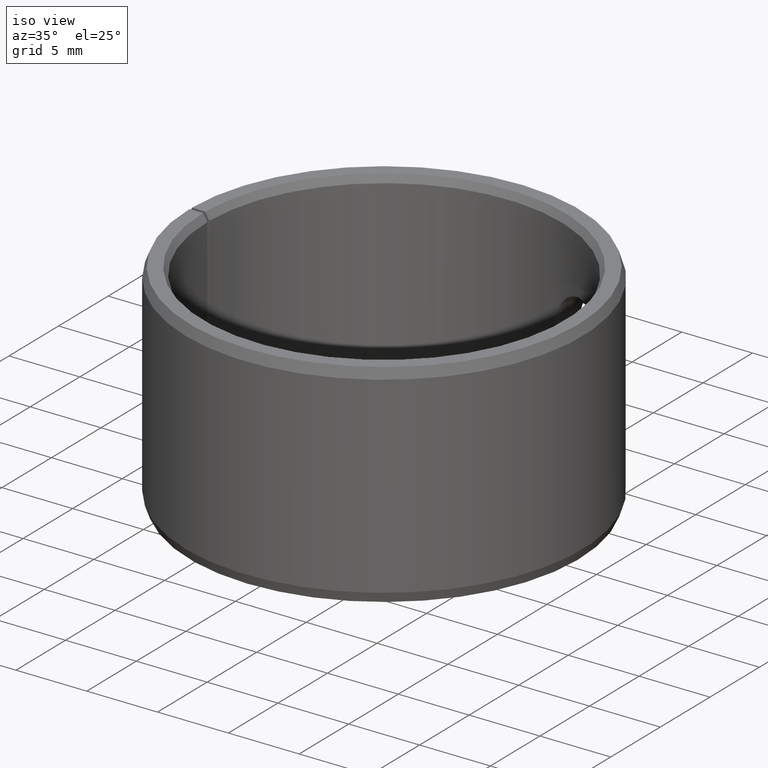
[diagram: clean part render]
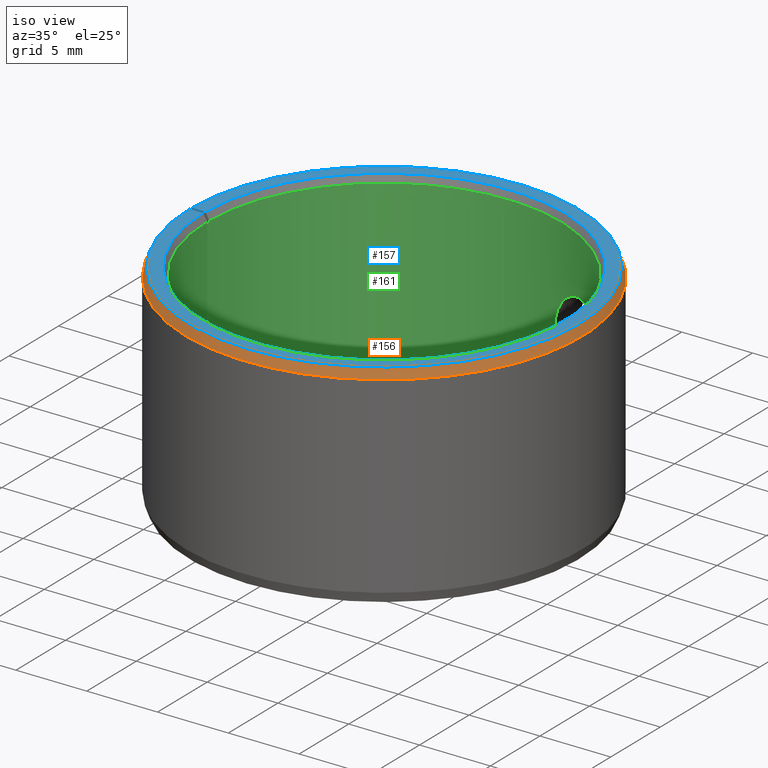
[diagram: same view with three faces highlighted in distinct colors, each labeled with its STEP entity id]
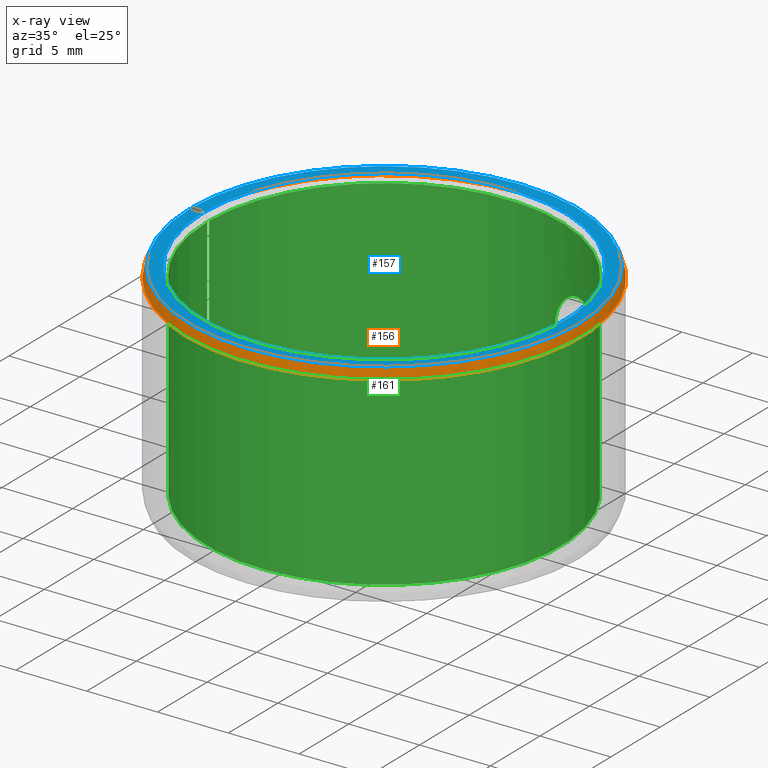
[diagram: x-ray of the same camera — body ghosted, the three highlighted faces saturated]
A machine part, iso view with three faces highlighted in distinct colors.
The next image is the same camera in x-ray (body ghosted, the three faces saturated) — at least one of them is partly hidden behind the body in this view.
Their STEP definitions:

[orange] entity #156 — the highlighted conical surface has half-angle 20 deg.
#156=ADVANCED_FACE('',(#172),#173,.T.);
#172=FACE_OUTER_BOUND('',#198,.T.);
#173=CONICAL_SURFACE('',#199,0.014,0.349065850398869);
#198=EDGE_LOOP('',(#238,#239,#240,#241));
#199=AXIS2_PLACEMENT_3D('',#242,#243,#244);
#238=ORIENTED_EDGE('',*,*,#312,.T.);
#239=ORIENTED_EDGE('',*,*,#313,.F.);
#240=ORIENTED_EDGE('',*,*,#314,.F.);
#241=ORIENTED_EDGE('',*,*,#315,.T.);
#242=CARTESIAN_POINT('',(-8.67361737988404E-018,-6.93889390390723E-018,0.0143));
#243=DIRECTION('',(6.12323399573677E-017,-0.0,-1.0));
#244=DIRECTION('',(-1.0,0.0,-6.12323399573677E-017));
#312=EDGE_CURVE('',#346,#347,#348,.T.);
#313=EDGE_CURVE('',#349,#347,#350,.T.);
#314=EDGE_CURVE('',#351,#349,#352,.T.);
#315=EDGE_CURVE('',#351,#346,#353,.T.);
#346=VERTEX_POINT('',#396);
#347=VERTEX_POINT('',#397);
#348=CIRCLE('',#398,0.0137452208360137);
#349=VERTEX_POINT('',#399);
#350=LINE('',#400,#401);
#351=VERTEX_POINT('',#402);
#352=CIRCLE('',#403,0.014);
#353=LINE('',#404,#405);
#396=CARTESIAN_POINT('',(0.00023988718060032,0.0137431273723039,0.015));
#397=CARTESIAN_POINT('',(-8.67361737988404E-018,0.0137452208360137,0.015));
#398=AXIS2_PLACEMENT_3D('',#572,#573,#574);
#399=CARTESIAN_POINT('',(-8.67361737988404E-018,0.014,0.0143));
#400=CARTESIAN_POINT('',(-8.67361737988404E-018,0.014,0.0143));
#401=VECTOR('',#575,1.0);
#402=CARTESIAN_POINT('',(0.000244333690121963,0.0139978677321895,0.0143));
#403=AXIS2_PLACEMENT_3D('',#576,#577,#578);
#404=CARTESIAN_POINT('',(0.000244333690121963,0.0139978677321895,0.0143));
#405=VECTOR('',#579,1.0);
#572=CARTESIAN_POINT('',(-8.67361737988404E-018,-6.93889390390723E-018,0.015));
#573=DIRECTION('',(6.12323399573677E-017,0.0,-1.0));
#574=DIRECTION('',(-1.0,0.0,-6.12323399573677E-017));
#575=DIRECTION('',(0.0,-0.34202014332567,0.939692620785908));
#576=CARTESIAN_POINT('',(-8.67361737988404E-018,-6.93889390390723E-018,0.0143));
#577=DIRECTION('',(6.12323399573677E-017,0.0,-1.0));
#578=DIRECTION('',(-1.0,0.0,-6.12323399573677E-017));
#579=DIRECTION('',(-0.00596907455105756,-0.341968052001229,0.939692620785908));

[blue] entity #157 — the highlighted planar face has unit normal (0, -0, 1).
#157=ADVANCED_FACE('',(#174),#175,.T.);
#174=FACE_OUTER_BOUND('',#200,.T.);
#175=PLANE('',#201);
#200=EDGE_LOOP('',(#245,#246,#247,#248));
#201=AXIS2_PLACEMENT_3D('',#249,#250,#251);
#245=ORIENTED_EDGE('',*,*,#316,.T.);
#246=ORIENTED_EDGE('',*,*,#317,.T.);
#247=ORIENTED_EDGE('',*,*,#318,.F.);
#248=ORIENTED_EDGE('',*,*,#312,.F.);
#249=CARTESIAN_POINT('',(0.00023988718060032,0.0137431273723039,0.015));
#250=DIRECTION('',(-6.12323399573677E-017,0.0,1.0));
#251=DIRECTION('',(1.0,0.0,6.12323399573677E-017));
#312=EDGE_CURVE('',#346,#347,#348,.T.);
#316=EDGE_CURVE('',#346,#354,#355,.T.);
#317=EDGE_CURVE('',#354,#356,#357,.T.);
#318=EDGE_CURVE('',#347,#356,#358,.T.);
#346=VERTEX_POINT('',#396);
#347=VERTEX_POINT('',#397);
#348=CIRCLE('',#398,0.0137452208360137);
#354=VERTEX_POINT('',#406);
#355=LINE('',#407,#408);
#356=VERTEX_POINT('',#409);
#357=CIRCLE('',#410,0.0127886751345948);
#358=LINE('',#411,#412);
#396=CARTESIAN_POINT('',(0.00023988718060032,0.0137431273723039,0.015));
#397=CARTESIAN_POINT('',(-8.67361737988404E-018,0.0137452208360137,0.015));
#398=AXIS2_PLACEMENT_3D('',#572,#573,#574);
#406=CARTESIAN_POINT('',(0.000223193156243322,0.0127867273574285,0.015));
#407=CARTESIAN_POINT('',(0.00023988718060032,0.0137431273723039,0.015));
#408=VECTOR('',#580,1.0);
#409=CARTESIAN_POINT('',(-8.67361737988404E-018,0.0127886751345948,0.015));
#410=AXIS2_PLACEMENT_3D('',#581,#582,#583);
#411=CARTESIAN_POINT('',(-8.67361737988404E-018,0.0137452208360137,0.015));
#412=VECTOR('',#584,1.0);
#572=CARTESIAN_POINT('',(-8.67361737988404E-018,-6.93889390390723E-018,0.015));
#573=DIRECTION('',(6.12323399573677E-017,0.0,-1.0));
#574=DIRECTION('',(-1.0,0.0,-6.12323399573677E-017));
#580=DIRECTION('',(-0.0174524064372836,-0.999847695156391,-1.0686516840419E-018));
#581=CARTESIAN_POINT('',(-8.67361737988404E-018,-6.93889390390723E-018,0.015));
#582=DIRECTION('',(6.12323399573677E-017,0.0,-1.0));
#583=DIRECTION('',(-1.0,0.0,-6.12323399573677E-017));
#584=DIRECTION('',(0.0,-1.0,0.0));

[green] entity #161 — the highlighted cylindrical surface (partial cylindrical patch) has radius 12.5 mm, axis along (-0, 0, -1).
#161=ADVANCED_FACE('',(#182,#183),#184,.F.);
#182=FACE_OUTER_BOUND('',#208,.T.);
#183=FACE_BOUND('',#209,.T.);
#184=CYLINDRICAL_SURFACE('',#210,0.0125);
#208=EDGE_LOOP('',(#281,#282,#283,#284));
#209=EDGE_LOOP('',(#285));
#210=AXIS2_PLACEMENT_3D('',#286,#287,#288);
#281=ORIENTED_EDGE('',*,*,#304,.T.);
#282=ORIENTED_EDGE('',*,*,#322,.F.);
#283=ORIENTED_EDGE('',*,*,#319,.F.);
#284=ORIENTED_EDGE('',*,*,#325,.T.);
#285=ORIENTED_EDGE('',*,*,#326,.T.);
#286=CARTESIAN_POINT('',(-6.93889390390723E-018,-6.93889390390723E-018,0.0));
#287=DIRECTION('',(6.12323399573677E-017,0.0,-1.0));
#288=DIRECTION('',(-1.0,0.0,-6.12323399573677E-017));
#304=EDGE_CURVE('',#333,#331,#334,.T.);
#319=EDGE_CURVE('',#359,#360,#361,.T.);
#322=EDGE_CURVE('',#360,#331,#364,.T.);
#325=EDGE_CURVE('',#359,#333,#367,.T.);
#326=EDGE_CURVE('',#368,#368,#369,.T.);
#331=VERTEX_POINT('',#375);
#333=VERTEX_POINT('',#378);
#334=CIRCLE('',#379,0.0125);
#359=VERTEX_POINT('',#413);
#360=VERTEX_POINT('',#414);
#361=CIRCLE('',#415,0.0125);
#364=LINE('',#420,#421);
#367=LINE('',#426,#427);
#368=VERTEX_POINT('',#428);
#369=B_SPLINE_CURVE_WITH_KNOTS('',3,(#429,#430,#431,#432,#433,#434,#435,#436,#437,#438,#439,#440,#441,#442,#443,#444,#445,#446,#447,#448,#449,#450,#451,#452,#453,#454,#455,#456,#457,#458,#459,#460,#461,#462,#463,#464,#465,#466,#467,#468,#469,#470,#471,#472,#473,#474,#475,#476,#477,#478,#479,#480,#481,#482,#483,#484,#485,#486,#487,#488,#489,#490,#491,#492),.UNSPECIFIED.,.T.,.F.,(2,2,2,2,2,2,2,2,2,2,2,2,2,2,2,2,2,2,2,2,2,2,2,2,2,2,2,2,2,2,2,2,2,2),(-0.000588281034898592,0.0,0.00058828103489859,0.00117656206979718,0.00176484310469577,0.00235312413959436,0.00294140517449295,0.00352968620939154,0.00411796724429013,0.00470624827918872,0.00529452931408731,0.0058828103489859,0.0064710913838845,0.00705937241878309,0.00764765345368168,0.00823593448858027,0.00882421552347886,0.00941249655837745,0.0105890586281746,0.0111773396630732,0.0117656206979718,0.0123539017328704,0.012942182767769,0.0135304638026676,0.0141187448375662,0.0147070258724648,0.0152953069073633,0.0158835879422619,0.0164718689771605,0.0170601500120591,0.0176484310469577,0.0182367120818563,0.0188249931167549,0.0194132741516535),.UNSPECIFIED.);
#375=CARTESIAN_POINT('',(-6.93889390390723E-018,0.0125,0.0005));
#378=CARTESIAN_POINT('',(0.000218155080466037,0.0124980961894549,0.0005));
#379=AXIS2_PLACEMENT_3D('',#558,#559,#560);
#413=CARTESIAN_POINT('',(0.000218155080466036,0.0124980961894549,0.0145));
#414=CARTESIAN_POINT('',(-8.67361737988404E-018,0.0125,0.0145));
#415=AXIS2_PLACEMENT_3D('',#585,#586,#587);
#420=CARTESIAN_POINT('',(-8.67361737988404E-018,0.0125,0.0145));
#421=VECTOR('',#590,1.0);
#426=CARTESIAN_POINT('',(0.000218155080466036,0.0124980961894549,0.0145));
#427=VECTOR('',#593,1.0);
#428=CARTESIAN_POINT('',(0.00885632047490393,-0.00882131439445378,0.0075));
#429=CARTESIAN_POINT('',(0.00885632047490393,-0.00882131439445378,0.00769897629236843));
#430=CARTESIAN_POINT('',(0.00885632047490393,-0.00882131439445378,0.00730102370763157));
#431=CARTESIAN_POINT('',(0.008870608015087,-0.00880703515908166,0.00710552353993709));
#432=CARTESIAN_POINT('',(0.00892599499023425,-0.00875089528476596,0.00672114284022996));
#433=CARTESIAN_POINT('',(0.00896779204067812,-0.00870831130558218,0.00653022657795962));
#434=CARTESIAN_POINT('',(0.00907484727826891,-0.00859669278012629,0.00616731017956878));
#435=CARTESIAN_POINT('',(0.0091396786892607,-0.00852810696772537,0.00599529929286672));
#436=CARTESIAN_POINT('',(0.00928976897487818,-0.00836436054873789,0.00566976204525108));
#437=CARTESIAN_POINT('',(0.00937545269464949,-0.00826864229251243,0.00551622160314748));
#438=CARTESIAN_POINT('',(0.00955810451651012,-0.00805681057507277,0.0052406385914374));
#439=CARTESIAN_POINT('',(0.00965584091228449,-0.00793990352391979,0.00511670706961737));
#440=CARTESIAN_POINT('',(0.00986245049769695,-0.00768175773329114,0.00489734614026971));
#441=CARTESIAN_POINT('',(0.00996895282431969,-0.00754339318071887,0.00480461730849215));
#442=CARTESIAN_POINT('',(0.0101833126175242,-0.00725140987851323,0.00465473453464443));
#443=CARTESIAN_POINT('',(0.0102926883023463,-0.00709564698354434,0.0045967184624443));
#444=CARTESIAN_POINT('',(0.0105079342040151,-0.00677281015298865,0.0045193536365746));
#445=CARTESIAN_POINT('',(0.0106124294144885,-0.00660794509533712,0.0045001216828471));
#446=CARTESIAN_POINT('',(0.0108148478169199,-0.00627117717476989,0.00449987945728094));
#447=CARTESIAN_POINT('',(0.0109135801933662,-0.00609762006583403,0.00451953326133243));
#448=CARTESIAN_POINT('',(0.0110965180618742,-0.00575799357474428,0.00459640292515818));
#449=CARTESIAN_POINT('',(0.0111816475900836,-0.00559054477060253,0.00465326972729905));
#450=CARTESIAN_POINT('',(0.0113403842774647,-0.00526109476253425,0.00480425405408531));
#451=CARTESIAN_POINT('',(0.0114129447817266,-0.00510112201082134,0.00489783921307462));
#452=CARTESIAN_POINT('',(0.0115425146926919,-0.00480074045632727,0.00511465432702435));
#453=CARTESIAN_POINT('',(0.0116005903623565,-0.00465791971312208,0.0052395049627046));
#454=CARTESIAN_POINT('',(0.0117027872337349,-0.00439484741157424,0.005517604453523));
#455=CARTESIAN_POINT('',(0.0117461510535234,-0.00427670620915678,0.0056682598435595));
#456=CARTESIAN_POINT('',(0.0118201284333513,-0.00406778126141385,0.0059924770510523));
#457=CARTESIAN_POINT('',(0.011850935043456,-0.00397634096719326,0.00616814542827026));
#458=CARTESIAN_POINT('',(0.0118991014398589,-0.00382979553181898,0.00653028357756143));
#459=CARTESIAN_POINT('',(0.0119167805745733,-0.00377384767185728,0.0067172788549418));
#460=CARTESIAN_POINT('',(0.0119405815194949,-0.00369785052283178,0.00710337951537278));
#461=CARTESIAN_POINT('',(0.0119465236521878,-0.00367839267004559,0.00730254112040654));
#462=CARTESIAN_POINT('',(0.0119465992239134,-0.00367814722550706,0.00789110545900317));
#463=CARTESIAN_POINT('',(0.0119232522966096,-0.00375628047129552,0.00828726127403094));
#464=CARTESIAN_POINT('',(0.0118513342251184,-0.00397514454598179,0.00882928807772022));
#465=CARTESIAN_POINT('',(0.0118206911688308,-0.00406615574208262,0.00900472891133975));
#466=CARTESIAN_POINT('',(0.011746490928873,-0.00427578216068718,0.00933057440331463));
#467=CARTESIAN_POINT('',(0.0117031367488794,-0.00439388828283013,0.00948114698362763));
#468=CARTESIAN_POINT('',(0.011601620184016,-0.00465532739029126,0.00975798611824578));
#469=CARTESIAN_POINT('',(0.0115430961704468,-0.00479934123048276,0.00988419877742766));
#470=CARTESIAN_POINT('',(0.0114135849027942,-0.00509968872711895,0.0101012618947197));
#471=CARTESIAN_POINT('',(0.0113421123644622,-0.00525737851129371,0.0101937608573922));
#472=CARTESIAN_POINT('',(0.0111832198078767,-0.00558740873999863,0.0103455692219099));
#473=CARTESIAN_POINT('',(0.0110973288083126,-0.00575640766381113,0.0104030737531293));
#474=CARTESIAN_POINT('',(0.0109151161514992,-0.00609484825660741,0.0104800016490617));
#475=CARTESIAN_POINT('',(0.0108173736849522,-0.00626686561599889,0.0104998891866558));
#476=CARTESIAN_POINT('',(0.0106135314215664,-0.00660621895279797,0.0105001098809488));
#477=CARTESIAN_POINT('',(0.0105089759240249,-0.0067711595135508,0.0104808202130408));
#478=CARTESIAN_POINT('',(0.0102951372783323,-0.00709206067021261,0.0104043590850992));
#479=CARTESIAN_POINT('',(0.0101848791362311,-0.00724922664872761,0.0103462249499299));
#480=CARTESIAN_POINT('',(0.00996975439848409,-0.007542350247646,0.010196077516805));
#481=CARTESIAN_POINT('',(0.00986397798926059,-0.00767978968537375,0.0101040447323065));
#482=CARTESIAN_POINT('',(0.00965780549801637,-0.00793750743915715,0.00988560577702691));
#483=CARTESIAN_POINT('',(0.0095587844422973,-0.00805600328527542,0.00976026340877847));
#484=CARTESIAN_POINT('',(0.00937619612526623,-0.0082677986893257,0.00948502297870451));
#485=CARTESIAN_POINT('',(0.00929124334120056,-0.00836273319142893,0.00933316380406959));
#486=CARTESIAN_POINT('',(0.00914011524230402,-0.00852764930176145,0.00900591611336649));
#487=CARTESIAN_POINT('',(0.00907529089706563,-0.00859622219280752,0.00883382025247267));
#488=CARTESIAN_POINT('',(0.00896859356352326,-0.00870748358291922,0.00847285967366354));
#489=CARTESIAN_POINT('',(0.00892652226065832,-0.00875035912219712,0.00828188926216425));
#490=CARTESIAN_POINT('',(0.00887061251358724,-0.00880703230783426,0.00789512884130825));
#491=CARTESIAN_POINT('',(0.00885632047490393,-0.00882131439445378,0.00769897629236843));
#492=CARTESIAN_POINT('',(0.00885632047490393,-0.00882131439445378,0.00730102370763157));
#558=CARTESIAN_POINT('',(-6.93889390390723E-018,-6.93889390390723E-018,0.0005));
#559=DIRECTION('',(6.12323399573677E-017,0.0,-1.0));
#560=DIRECTION('',(-1.0,0.0,-6.12323399573677E-017));
#585=CARTESIAN_POINT('',(-8.67361737988404E-018,-6.93889390390723E-018,0.0145));
#586=DIRECTION('',(6.12323399573677E-017,0.0,-1.0));
#587=DIRECTION('',(-1.0,0.0,-6.12323399573677E-017));
#590=DIRECTION('',(1.23908819712629E-016,4.95635278850516E-016,-1.0));
#593=DIRECTION('',(1.32549302112338E-016,4.94465935798137E-016,-1.0));